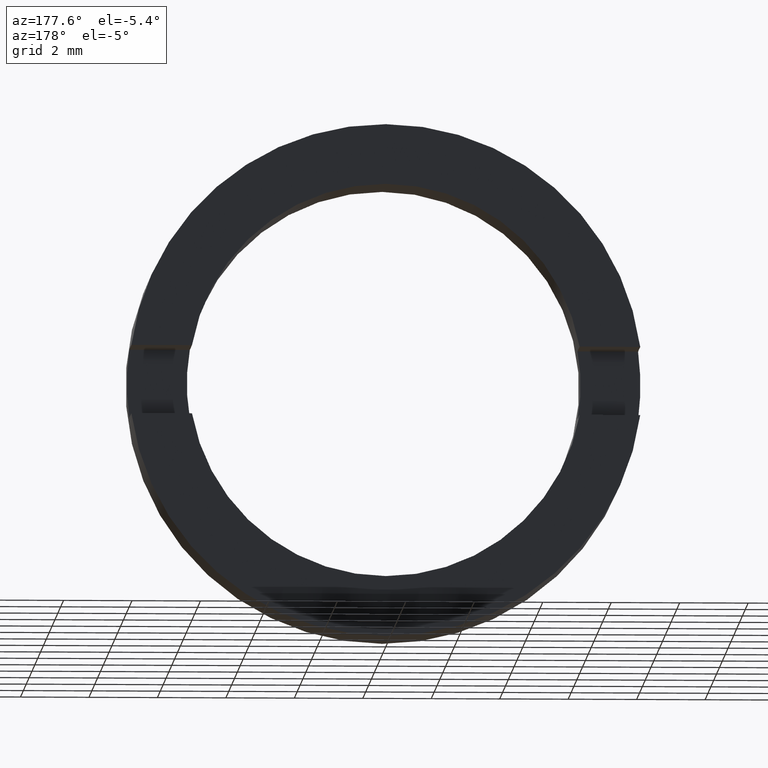
[diagram: clean part render]
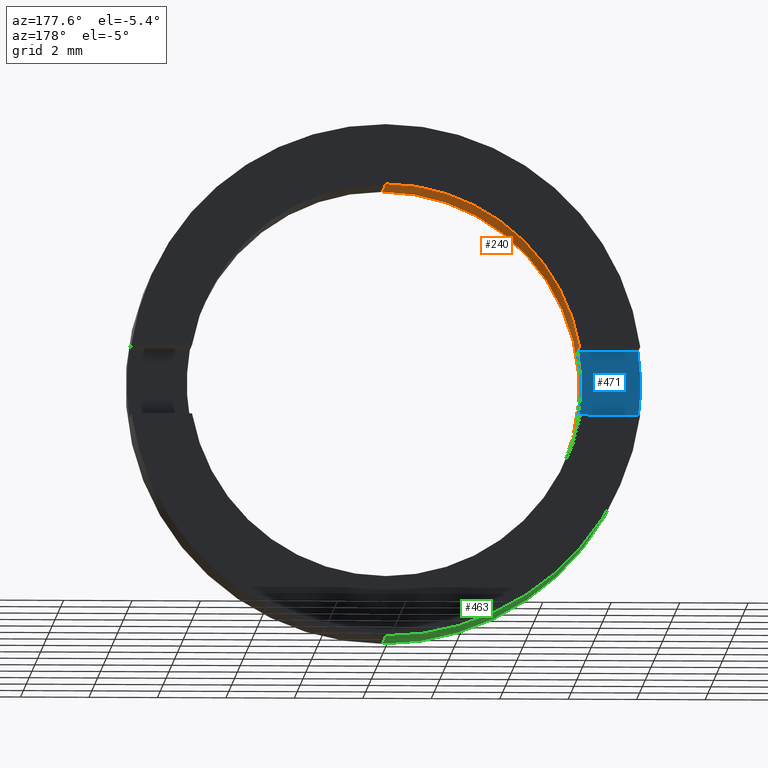
[diagram: same view with three faces highlighted in distinct colors, each labeled with its STEP entity id]
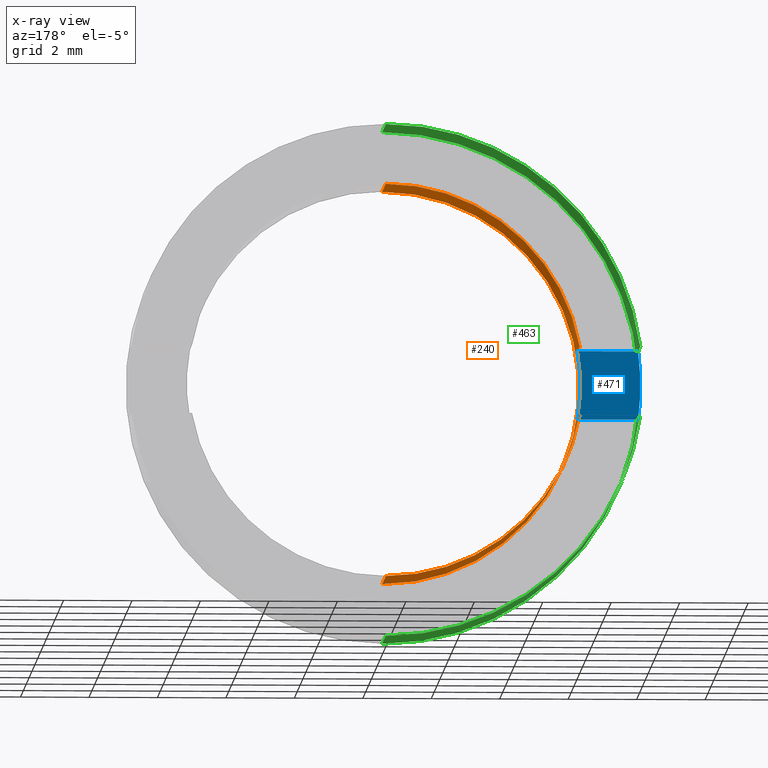
[diagram: x-ray of the same camera — body ghosted, the three highlighted faces saturated]
A machine part, auxiliary view with three faces highlighted in distinct colors.
The next image is the same camera in x-ray (body ghosted, the three faces saturated) — at least one of them is partly hidden behind the body in this view.
Their STEP definitions:

[orange] entity #240 — the highlighted cylindrical surface (partial cylindrical patch) has radius 5.75 mm, axis along (-0, 1, -0).
#5 = CARTESIAN_POINT ( 'NONE',  ( -5.662375826453069500, -1.964249787179434000, -0.9999999999999995600 ) ) ;
#15 = CARTESIAN_POINT ( 'NONE',  ( 0.0000000000000000000, -1.964249787179434000, 0.0000000000000000000 ) ) ;
#20 = FACE_OUTER_BOUND ( 'NONE', #497, .T. ) ;
#21 = ORIENTED_EDGE ( 'NONE', *, *, #106, .F. ) ;
#22 = EDGE_CURVE ( 'NONE', #574, #531, #246, .T. ) ;
#24 = VECTOR ( 'NONE', #223, 1000.000000000000000 ) ;
#31 = CARTESIAN_POINT ( 'NONE',  ( 0.0000000000000000000, 56.26084262701361600, 5.750000000000008000 ) ) ;
#35 = DIRECTION ( 'NONE',  ( -0.0000000000000000000, 1.000000000000000000, -0.0000000000000000000 ) ) ;
#48 = DIRECTION ( 'NONE',  ( -0.0000000000000000000, 1.000000000000000000, -0.0000000000000000000 ) ) ;
#59 = VERTEX_POINT ( 'NONE', #5 ) ;
#61 = CARTESIAN_POINT ( 'NONE',  ( 0.0000000000000000000, -1.964249787179434000, 0.0000000000000000000 ) ) ;
#62 = AXIS2_PLACEMENT_3D ( 'NONE', #61, #330, #375 ) ;
#70 = EDGE_CURVE ( 'NONE', #531, #59, #505, .T. ) ;
#78 = ORIENTED_EDGE ( 'NONE', *, *, #276, .F. ) ;
#84 = VERTEX_POINT ( 'NONE', #327 ) ;
#86 = ORIENTED_EDGE ( 'NONE', *, *, #515, .T. ) ;
#87 = DIRECTION ( 'NONE',  ( -0.0000000000000000000, 1.000000000000000000, -0.0000000000000000000 ) ) ;
#88 = AXIS2_PLACEMENT_3D ( 'NONE', #152, #427, #322 ) ;
#106 = EDGE_CURVE ( 'NONE', #84, #210, #379, .T. ) ;
#111 = CIRCLE ( 'NONE', #469, 5.750000000000008900 ) ;
#112 = ORIENTED_EDGE ( 'NONE', *, *, #70, .T. ) ;
#121 = EDGE_CURVE ( 'NONE', #272, #129, #281, .T. ) ;
#129 = VERTEX_POINT ( 'NONE', #381 ) ;
#136 = LINE ( 'NONE', #31, #391 ) ;
#152 = CARTESIAN_POINT ( 'NONE',  ( 0.0000000000000000000, -3.464249787179428400, 0.0000000000000000000 ) ) ;
#168 = DIRECTION ( 'NONE',  ( -0.0000000000000000000, 1.000000000000000000, -0.0000000000000000000 ) ) ;
#178 = CARTESIAN_POINT ( 'NONE',  ( -5.662375826453070400, 56.26084262701361600, -1.000000000000000000 ) ) ;
#184 = ORIENTED_EDGE ( 'NONE', *, *, #339, .F. ) ;
#209 = CARTESIAN_POINT ( 'NONE',  ( 0.0000000000000000000, -4.464249787179428900, 5.750000000000008900 ) ) ;
#210 = VERTEX_POINT ( 'NONE', #283 ) ;
#213 = CARTESIAN_POINT ( 'NONE',  ( 7.041719095097290700E-016, -1.964249787179434000, -5.750000000000007100 ) ) ;
#223 = DIRECTION ( 'NONE',  ( 0.0000000000000000000, -1.000000000000000000, 0.0000000000000000000 ) ) ;
#237 = DIRECTION ( 'NONE',  ( -0.0000000000000000000, 1.000000000000000000, -0.0000000000000000000 ) ) ;
#240 = ADVANCED_FACE ( 'NONE', ( #20 ), #485, .F. ) ;
#246 = LINE ( 'NONE', #318, #545 ) ;
#247 = ORIENTED_EDGE ( 'NONE', *, *, #22, .T. ) ;
#259 = AXIS2_PLACEMENT_3D ( 'NONE', #495, #168, #486 ) ;
#272 = VERTEX_POINT ( 'NONE', #402 ) ;
#276 = EDGE_CURVE ( 'NONE', #574, #291, #111, .T. ) ;
#281 = CIRCLE ( 'NONE', #62, 5.750000000000007100 ) ;
#283 = CARTESIAN_POINT ( 'NONE',  ( -5.662375826453069500, -3.464249787179428400, -0.9999999999999995600 ) ) ;
#289 = VECTOR ( 'NONE', #87, 1000.000000000000000 ) ;
#291 = VERTEX_POINT ( 'NONE', #209 ) ;
#304 = CARTESIAN_POINT ( 'NONE',  ( 0.0000000000000000000, -4.464249787179428900, 0.0000000000000000000 ) ) ;
#305 = CARTESIAN_POINT ( 'NONE',  ( -5.662375826453070400, 56.26084262701361600, 1.000000000000000000 ) ) ;
#318 = CARTESIAN_POINT ( 'NONE',  ( 7.041719095097290700E-016, 56.26084262701361600, -5.750000000000008000 ) ) ;
#322 = DIRECTION ( 'NONE',  ( 0.0000000000000000000, 0.0000000000000000000, 1.000000000000000000 ) ) ;
#327 = CARTESIAN_POINT ( 'NONE',  ( -5.662375826453069500, -3.464249787179428400, 0.9999999999999995600 ) ) ;
#330 = DIRECTION ( 'NONE',  ( -0.0000000000000000000, 1.000000000000000000, -0.0000000000000000000 ) ) ;
#339 = EDGE_CURVE ( 'NONE', #291, #129, #136, .T. ) ;
#343 = DIRECTION ( 'NONE',  ( 0.0000000000000000000, 0.0000000000000000000, 1.000000000000000000 ) ) ;
#349 = LINE ( 'NONE', #305, #289 ) ;
#366 = LINE ( 'NONE', #178, #24 ) ;
#375 = DIRECTION ( 'NONE',  ( 0.0000000000000000000, 0.0000000000000000000, 1.000000000000000000 ) ) ;
#379 = CIRCLE ( 'NONE', #88, 5.750000000000008000 ) ;
#381 = CARTESIAN_POINT ( 'NONE',  ( 0.0000000000000000000, -1.964249787179434000, 5.750000000000007100 ) ) ;
#391 = VECTOR ( 'NONE', #397, 1000.000000000000000 ) ;
#397 = DIRECTION ( 'NONE',  ( -0.0000000000000000000, 1.000000000000000000, -0.0000000000000000000 ) ) ;
#402 = CARTESIAN_POINT ( 'NONE',  ( -5.662375826453069500, -1.964249787179434000, 0.9999999999999995600 ) ) ;
#405 = CARTESIAN_POINT ( 'NONE',  ( 7.041719095097292700E-016, -4.464249787179428900, -5.750000000000008900 ) ) ;
#423 = DIRECTION ( 'NONE',  ( 0.0000000000000000000, 0.0000000000000000000, 1.000000000000000000 ) ) ;
#427 = DIRECTION ( 'NONE',  ( -0.0000000000000000000, -1.000000000000000000, -0.0000000000000000000 ) ) ;
#438 = EDGE_CURVE ( 'NONE', #59, #210, #366, .T. ) ;
#469 = AXIS2_PLACEMENT_3D ( 'NONE', #304, #35, #343 ) ;
#476 = AXIS2_PLACEMENT_3D ( 'NONE', #15, #237, #423 ) ;
#485 = CYLINDRICAL_SURFACE ( 'NONE', #259, 5.750000000000008000 ) ;
#486 = DIRECTION ( 'NONE',  ( 0.0000000000000000000, 0.0000000000000000000, 1.000000000000000000 ) ) ;
#495 = CARTESIAN_POINT ( 'NONE',  ( 0.0000000000000000000, 56.26084262701361600, 0.0000000000000000000 ) ) ;
#497 = EDGE_LOOP ( 'NONE', ( #78, #247, #112, #507, #21, #86, #546, #184 ) ) ;
#505 = CIRCLE ( 'NONE', #476, 5.750000000000007100 ) ;
#507 = ORIENTED_EDGE ( 'NONE', *, *, #438, .T. ) ;
#515 = EDGE_CURVE ( 'NONE', #84, #272, #349, .T. ) ;
#531 = VERTEX_POINT ( 'NONE', #213 ) ;
#545 = VECTOR ( 'NONE', #48, 1000.000000000000000 ) ;
#546 = ORIENTED_EDGE ( 'NONE', *, *, #121, .T. ) ;
#574 = VERTEX_POINT ( 'NONE', #405 ) ;

[blue] entity #471 — the highlighted planar face has unit normal (0, 1, 0).
#12 = AXIS2_PLACEMENT_3D ( 'NONE', #80, #83, #586 ) ;
#17 = EDGE_CURVE ( 'NONE', #105, #84, #295, .T. ) ;
#25 = EDGE_LOOP ( 'NONE', ( #393, #334, #380, #177 ) ) ;
#39 = PLANE ( 'NONE',  #12 ) ;
#58 = CARTESIAN_POINT ( 'NONE',  ( -7.433034373659258300, -3.464249787179428400, 0.9999999999999995600 ) ) ;
#80 = CARTESIAN_POINT ( 'NONE',  ( 0.0000000000000000000, -3.464249787179431100, 0.0000000000000000000 ) ) ;
#83 = DIRECTION ( 'NONE',  ( 0.0000000000000000000, 1.000000000000000000, 0.0000000000000000000 ) ) ;
#84 = VERTEX_POINT ( 'NONE', #327 ) ;
#88 = AXIS2_PLACEMENT_3D ( 'NONE', #152, #427, #322 ) ;
#93 = VECTOR ( 'NONE', #160, 1000.000000000000000 ) ;
#94 = CARTESIAN_POINT ( 'NONE',  ( -26.85254027261461800, -3.464249787179431100, 1.000000000000000000 ) ) ;
#105 = VERTEX_POINT ( 'NONE', #58 ) ;
#106 = EDGE_CURVE ( 'NONE', #84, #210, #379, .T. ) ;
#152 = CARTESIAN_POINT ( 'NONE',  ( 0.0000000000000000000, -3.464249787179428400, 0.0000000000000000000 ) ) ;
#160 = DIRECTION ( 'NONE',  ( -1.000000000000000000, -0.0000000000000000000, -0.0000000000000000000 ) ) ;
#177 = ORIENTED_EDGE ( 'NONE', *, *, #205, .T. ) ;
#199 = VERTEX_POINT ( 'NONE', #468 ) ;
#205 = EDGE_CURVE ( 'NONE', #210, #199, #333, .T. ) ;
#210 = VERTEX_POINT ( 'NONE', #283 ) ;
#229 = FACE_OUTER_BOUND ( 'NONE', #25, .T. ) ;
#254 = CARTESIAN_POINT ( 'NONE',  ( 0.0000000000000000000, -3.464249787179428400, 0.0000000000000000000 ) ) ;
#283 = CARTESIAN_POINT ( 'NONE',  ( -5.662375826453069500, -3.464249787179428400, -0.9999999999999995600 ) ) ;
#295 = LINE ( 'NONE', #94, #407 ) ;
#297 = DIRECTION ( 'NONE',  ( 0.0000000000000000000, 0.0000000000000000000, 1.000000000000000000 ) ) ;
#312 = EDGE_CURVE ( 'NONE', #199, #105, #384, .T. ) ;
#322 = DIRECTION ( 'NONE',  ( 0.0000000000000000000, 0.0000000000000000000, 1.000000000000000000 ) ) ;
#327 = CARTESIAN_POINT ( 'NONE',  ( -5.662375826453069500, -3.464249787179428400, 0.9999999999999995600 ) ) ;
#333 = LINE ( 'NONE', #369, #93 ) ;
#334 = ORIENTED_EDGE ( 'NONE', *, *, #17, .T. ) ;
#369 = CARTESIAN_POINT ( 'NONE',  ( -26.85254027261461800, -3.464249787179431100, -1.000000000000000000 ) ) ;
#379 = CIRCLE ( 'NONE', #88, 5.750000000000008000 ) ;
#380 = ORIENTED_EDGE ( 'NONE', *, *, #106, .T. ) ;
#384 = CIRCLE ( 'NONE', #575, 7.500000000000007100 ) ;
#393 = ORIENTED_EDGE ( 'NONE', *, *, #312, .T. ) ;
#407 = VECTOR ( 'NONE', #552, 1000.000000000000000 ) ;
#427 = DIRECTION ( 'NONE',  ( -0.0000000000000000000, -1.000000000000000000, -0.0000000000000000000 ) ) ;
#468 = CARTESIAN_POINT ( 'NONE',  ( -7.433034373659258300, -3.464249787179428400, -0.9999999999999995600 ) ) ;
#471 = ADVANCED_FACE ( 'NONE', ( #229 ), #39, .T. ) ;
#552 = DIRECTION ( 'NONE',  ( 1.000000000000000000, 0.0000000000000000000, 0.0000000000000000000 ) ) ;
#575 = AXIS2_PLACEMENT_3D ( 'NONE', #254, #580, #297 ) ;
#580 = DIRECTION ( 'NONE',  ( 0.0000000000000000000, 1.000000000000000000, 0.0000000000000000000 ) ) ;
#586 = DIRECTION ( 'NONE',  ( 0.0000000000000000000, -0.0000000000000000000, 1.000000000000000000 ) ) ;

[green] entity #463 — the highlighted cylindrical surface (partial cylindrical patch) has radius 7.5 mm, axis along (-0, 1, -0).
#2 = VECTOR ( 'NONE', #539, 1000.000000000000000 ) ;
#26 = ORIENTED_EDGE ( 'NONE', *, *, #396, .F. ) ;
#28 = CIRCLE ( 'NONE', #562, 7.500000000000007100 ) ;
#38 = CARTESIAN_POINT ( 'NONE',  ( 0.0000000000000000000, -4.464249787179428900, 7.500000000000007100 ) ) ;
#58 = CARTESIAN_POINT ( 'NONE',  ( -7.433034373659258300, -3.464249787179428400, 0.9999999999999995600 ) ) ;
#65 = CIRCLE ( 'NONE', #321, 7.500000000000007100 ) ;
#77 = EDGE_CURVE ( 'NONE', #96, #192, #28, .T. ) ;
#79 = CARTESIAN_POINT ( 'NONE',  ( -7.433034373659259200, 56.26084262701361600, 1.000000000000000000 ) ) ;
#85 = CARTESIAN_POINT ( 'NONE',  ( 9.184850993605157800E-016, -1.964249787179434000, -7.500000000000007100 ) ) ;
#96 = VERTEX_POINT ( 'NONE', #239 ) ;
#105 = VERTEX_POINT ( 'NONE', #58 ) ;
#123 = LINE ( 'NONE', #79, #2 ) ;
#127 = LINE ( 'NONE', #589, #440 ) ;
#130 = DIRECTION ( 'NONE',  ( 0.0000000000000000000, 0.0000000000000000000, 1.000000000000000000 ) ) ;
#133 = CARTESIAN_POINT ( 'NONE',  ( 0.0000000000000000000, -1.964249787179434000, 0.0000000000000000000 ) ) ;
#144 = FACE_OUTER_BOUND ( 'NONE', #482, .T. ) ;
#153 = VERTEX_POINT ( 'NONE', #197 ) ;
#163 = VERTEX_POINT ( 'NONE', #524 ) ;
#167 = VECTOR ( 'NONE', #410, 1000.000000000000000 ) ;
#173 = DIRECTION ( 'NONE',  ( 0.0000000000000000000, 0.0000000000000000000, 1.000000000000000000 ) ) ;
#192 = VERTEX_POINT ( 'NONE', #516 ) ;
#197 = CARTESIAN_POINT ( 'NONE',  ( 9.184850993605157800E-016, -4.464249787179428900, -7.500000000000007100 ) ) ;
#199 = VERTEX_POINT ( 'NONE', #468 ) ;
#219 = DIRECTION ( 'NONE',  ( -0.0000000000000000000, 1.000000000000000000, -0.0000000000000000000 ) ) ;
#228 = AXIS2_PLACEMENT_3D ( 'NONE', #456, #457, #548 ) ;
#235 = DIRECTION ( 'NONE',  ( 0.0000000000000000000, 0.0000000000000000000, 1.000000000000000000 ) ) ;
#239 = CARTESIAN_POINT ( 'NONE',  ( -7.433034373659268100, -1.964249787179430900, 1.000000000000000000 ) ) ;
#248 = EDGE_CURVE ( 'NONE', #96, #105, #123, .T. ) ;
#254 = CARTESIAN_POINT ( 'NONE',  ( 0.0000000000000000000, -3.464249787179428400, 0.0000000000000000000 ) ) ;
#271 = DIRECTION ( 'NONE',  ( -0.0000000000000000000, 1.000000000000000000, -0.0000000000000000000 ) ) ;
#273 = ORIENTED_EDGE ( 'NONE', *, *, #551, .T. ) ;
#292 = AXIS2_PLACEMENT_3D ( 'NONE', #133, #361, #130 ) ;
#296 = VERTEX_POINT ( 'NONE', #38 ) ;
#297 = DIRECTION ( 'NONE',  ( 0.0000000000000000000, 0.0000000000000000000, 1.000000000000000000 ) ) ;
#300 = VECTOR ( 'NONE', #219, 1000.000000000000000 ) ;
#312 = EDGE_CURVE ( 'NONE', #199, #105, #384, .T. ) ;
#321 = AXIS2_PLACEMENT_3D ( 'NONE', #453, #503, #173 ) ;
#361 = DIRECTION ( 'NONE',  ( -0.0000000000000000000, 1.000000000000000000, -0.0000000000000000000 ) ) ;
#372 = ORIENTED_EDGE ( 'NONE', *, *, #429, .F. ) ;
#378 = DIRECTION ( 'NONE',  ( -0.0000000000000000000, 1.000000000000000000, -0.0000000000000000000 ) ) ;
#384 = CIRCLE ( 'NONE', #575, 7.500000000000007100 ) ;
#386 = VERTEX_POINT ( 'NONE', #85 ) ;
#396 = EDGE_CURVE ( 'NONE', #386, #163, #477, .T. ) ;
#401 = ORIENTED_EDGE ( 'NONE', *, *, #248, .T. ) ;
#404 = CARTESIAN_POINT ( 'NONE',  ( 9.184850993605157800E-016, 56.26084262701361600, -7.500000000000007100 ) ) ;
#410 = DIRECTION ( 'NONE',  ( -0.0000000000000000000, 1.000000000000000000, -0.0000000000000000000 ) ) ;
#429 = EDGE_CURVE ( 'NONE', #153, #386, #518, .T. ) ;
#440 = VECTOR ( 'NONE', #271, 1000.000000000000000 ) ;
#453 = CARTESIAN_POINT ( 'NONE',  ( 0.0000000000000000000, -4.464249787179428900, 0.0000000000000000000 ) ) ;
#456 = CARTESIAN_POINT ( 'NONE',  ( 0.0000000000000000000, 56.26084262701361600, 0.0000000000000000000 ) ) ;
#457 = DIRECTION ( 'NONE',  ( -0.0000000000000000000, 1.000000000000000000, -0.0000000000000000000 ) ) ;
#460 = ORIENTED_EDGE ( 'NONE', *, *, #582, .T. ) ;
#463 = ADVANCED_FACE ( 'NONE', ( #144 ), #494, .T. ) ;
#467 = ORIENTED_EDGE ( 'NONE', *, *, #77, .F. ) ;
#468 = CARTESIAN_POINT ( 'NONE',  ( -7.433034373659258300, -3.464249787179428400, -0.9999999999999995600 ) ) ;
#477 = CIRCLE ( 'NONE', #292, 7.500000000000007100 ) ;
#482 = EDGE_LOOP ( 'NONE', ( #372, #273, #460, #467, #401, #499, #587, #26 ) ) ;
#494 = CYLINDRICAL_SURFACE ( 'NONE', #228, 7.500000000000007100 ) ;
#499 = ORIENTED_EDGE ( 'NONE', *, *, #312, .F. ) ;
#503 = DIRECTION ( 'NONE',  ( -0.0000000000000000000, 1.000000000000000000, -0.0000000000000000000 ) ) ;
#516 = CARTESIAN_POINT ( 'NONE',  ( 0.0000000000000000000, -1.964249787179434000, 7.500000000000007100 ) ) ;
#518 = LINE ( 'NONE', #404, #167 ) ;
#523 = CARTESIAN_POINT ( 'NONE',  ( 0.0000000000000000000, -1.964249787179434000, 0.0000000000000000000 ) ) ;
#524 = CARTESIAN_POINT ( 'NONE',  ( -7.433034373659268100, -1.964249787179430900, -1.000000000000000000 ) ) ;
#532 = EDGE_CURVE ( 'NONE', #199, #163, #584, .T. ) ;
#539 = DIRECTION ( 'NONE',  ( 0.0000000000000000000, -1.000000000000000000, 0.0000000000000000000 ) ) ;
#540 = CARTESIAN_POINT ( 'NONE',  ( -7.433034373659259200, 56.26084262701361600, -1.000000000000000000 ) ) ;
#548 = DIRECTION ( 'NONE',  ( 0.0000000000000000000, 0.0000000000000000000, 1.000000000000000000 ) ) ;
#551 = EDGE_CURVE ( 'NONE', #153, #296, #65, .T. ) ;
#562 = AXIS2_PLACEMENT_3D ( 'NONE', #523, #378, #235 ) ;
#575 = AXIS2_PLACEMENT_3D ( 'NONE', #254, #580, #297 ) ;
#580 = DIRECTION ( 'NONE',  ( 0.0000000000000000000, 1.000000000000000000, 0.0000000000000000000 ) ) ;
#582 = EDGE_CURVE ( 'NONE', #296, #192, #127, .T. ) ;
#584 = LINE ( 'NONE', #540, #300 ) ;
#587 = ORIENTED_EDGE ( 'NONE', *, *, #532, .T. ) ;
#589 = CARTESIAN_POINT ( 'NONE',  ( 0.0000000000000000000, 56.26084262701361600, 7.500000000000007100 ) ) ;